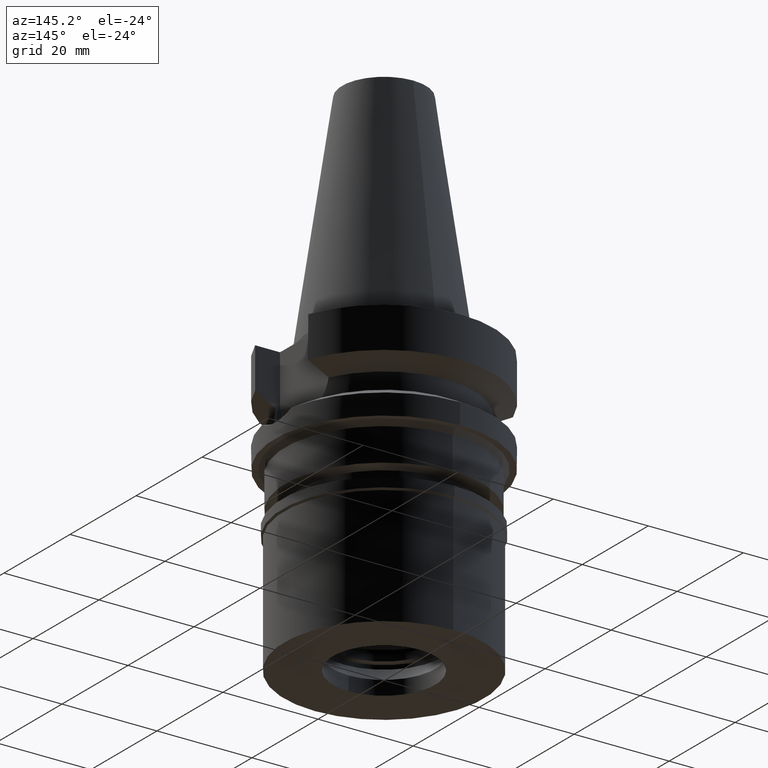
[diagram: clean part render]
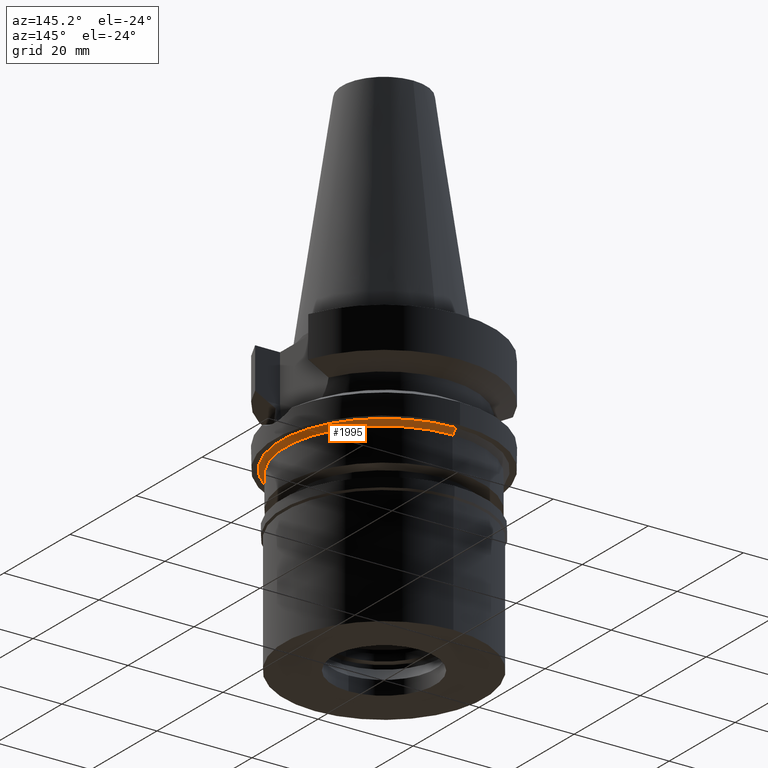
[diagram: same view with one face highlighted and labeled with its STEP entity id]
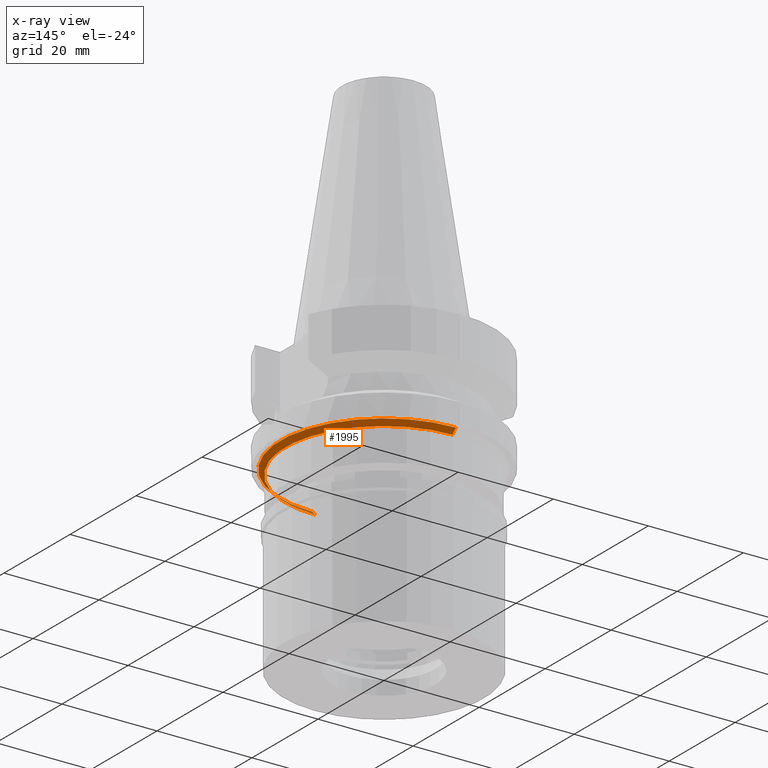
[diagram: x-ray of the same camera — body ghosted, the highlighted face saturated]
A machine part, auxiliary view. The second image highlights one B-rep face of the part: STEP entity #1995.
The next image is the same camera in x-ray: the body ghosted, the highlighted face saturated — about 4% of this face is hidden behind the body in this view.
In plain terms, the highlighted conical surface has half-angle 45 deg.
Its self-contained STEP definition (entity closure, byte-faithful):
#9 = ORIENTED_EDGE ( 'NONE', *, *, #2799, .F. ) ;
#87 = AXIS2_PLACEMENT_3D ( 'NONE', #2906, #304, #808 ) ;
#136 = VERTEX_POINT ( 'NONE', #700 ) ;
#266 = DIRECTION ( 'NONE',  ( 0.0000000000000000000, 0.0000000000000000000, -1.000000000000000000 ) ) ;
#285 = CARTESIAN_POINT ( 'NONE',  ( 0.0000000000000000000, -21.75000000000000000, -22.00000000000000000 ) ) ;
#293 = VECTOR ( 'NONE', #2156, 1000.000000000000114 ) ;
#304 = DIRECTION ( 'NONE',  ( 0.0000000000000000000, 0.0000000000000000000, -1.000000000000000000 ) ) ;
#403 = ORIENTED_EDGE ( 'NONE', *, *, #733, .F. ) ;
#531 = VERTEX_POINT ( 'NONE', #799 ) ;
#537 = ORIENTED_EDGE ( 'NONE', *, *, #1419, .T. ) ;
#558 = ORIENTED_EDGE ( 'NONE', *, *, #2685, .T. ) ;
#662 = VERTEX_POINT ( 'NONE', #285 ) ;
#678 = AXIS2_PLACEMENT_3D ( 'NONE', #918, #2716, #1602 ) ;
#700 = CARTESIAN_POINT ( 'NONE',  ( 0.0000000000000000000, -20.75000000000000000, -23.00000000000000000 ) ) ;
#733 = EDGE_CURVE ( 'NONE', #958, #531, #2955, .T. ) ;
#799 = CARTESIAN_POINT ( 'NONE',  ( 0.0000000000000000000, 20.75000000000000000, -23.00000000000000000 ) ) ;
#808 = DIRECTION ( 'NONE',  ( 0.0000000000000000000, 1.000000000000000000, 0.0000000000000000000 ) ) ;
#918 = CARTESIAN_POINT ( 'NONE',  ( 0.0000000000000000000, 0.0000000000000000000, -22.50000000000000000 ) ) ;
#958 = VERTEX_POINT ( 'NONE', #1382 ) ;
#1053 = CARTESIAN_POINT ( 'NONE',  ( 0.0000000000000000000, 21.75000000000000000, -22.00000000000000000 ) ) ;
#1154 = VECTOR ( 'NONE', #2733, 1000.000000000000114 ) ;
#1160 = CARTESIAN_POINT ( 'NONE',  ( 0.0000000000000000000, 0.0000000000000000000, -23.00000000000000000 ) ) ;
#1166 = AXIS2_PLACEMENT_3D ( 'NONE', #1160, #266, #1899 ) ;
#1382 = CARTESIAN_POINT ( 'NONE',  ( 0.0000000000000000000, 21.75000000000000000, -22.00000000000000000 ) ) ;
#1401 = CARTESIAN_POINT ( 'NONE',  ( 0.0000000000000000000, -21.75000000000000000, -22.00000000000000000 ) ) ;
#1419 = EDGE_CURVE ( 'NONE', #958, #662, #2922, .T. ) ;
#1540 = CONICAL_SURFACE ( 'NONE', #678, 21.25000000000000000, 0.7853981633972997312 ) ;
#1602 = DIRECTION ( 'NONE',  ( 0.0000000000000000000, 1.000000000000000000, 0.0000000000000000000 ) ) ;
#1899 = DIRECTION ( 'NONE',  ( 0.0000000000000000000, 1.000000000000000000, 0.0000000000000000000 ) ) ;
#1995 = ADVANCED_FACE ( 'NONE', ( #2031 ), #1540, .T. ) ;
#2031 = FACE_OUTER_BOUND ( 'NONE', #2833, .T. ) ;
#2156 = DIRECTION ( 'NONE',  ( 0.0000000000000000000, 0.7071067811865474617, -0.7071067811865474617 ) ) ;
#2484 = CIRCLE ( 'NONE', #1166, 20.75000000000000000 ) ;
#2685 = EDGE_CURVE ( 'NONE', #662, #136, #2825, .T. ) ;
#2716 = DIRECTION ( 'NONE',  ( 0.0000000000000000000, 0.0000000000000000000, 1.000000000000000000 ) ) ;
#2733 = DIRECTION ( 'NONE',  ( 0.0000000000000000000, -0.7071067811865474617, -0.7071067811865474617 ) ) ;
#2799 = EDGE_CURVE ( 'NONE', #531, #136, #2484, .T. ) ;
#2825 = LINE ( 'NONE', #1401, #293 ) ;
#2833 = EDGE_LOOP ( 'NONE', ( #537, #558, #9, #403 ) ) ;
#2906 = CARTESIAN_POINT ( 'NONE',  ( 0.0000000000000000000, 0.0000000000000000000, -22.00000000000000000 ) ) ;
#2922 = CIRCLE ( 'NONE', #87, 21.75000000000000000 ) ;
#2955 = LINE ( 'NONE', #1053, #1154 ) ;